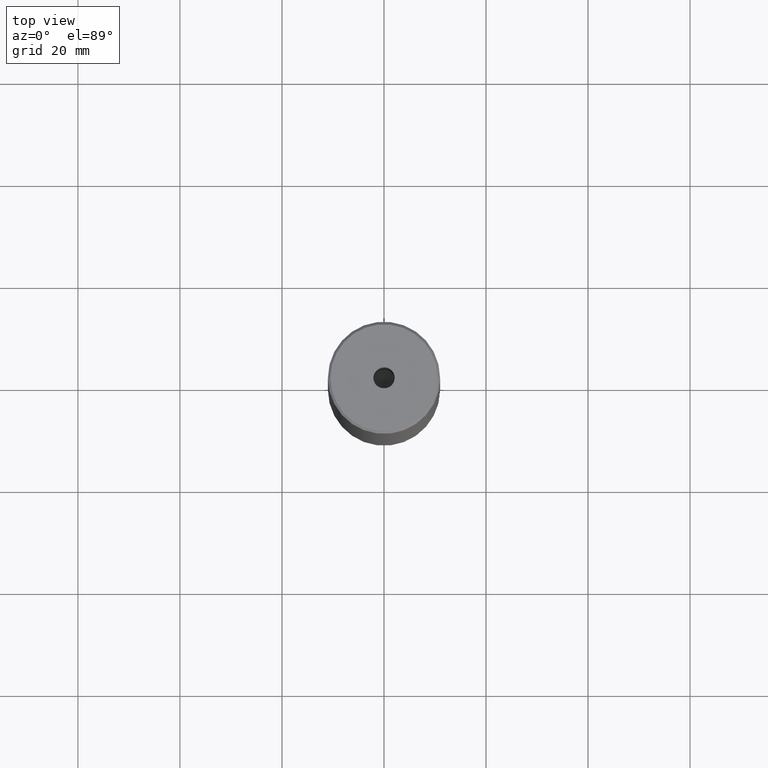
[diagram: clean part render]
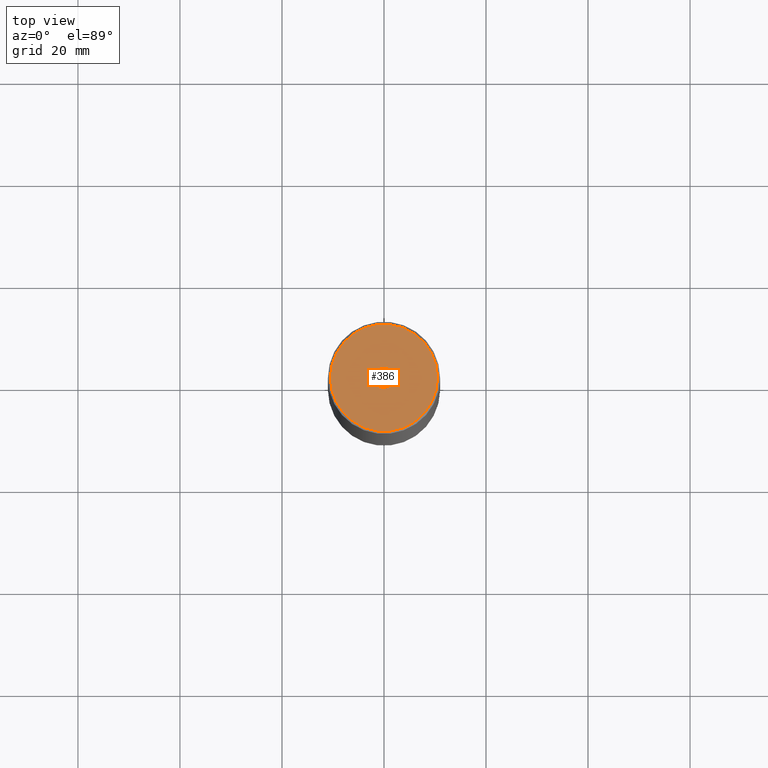
[diagram: same view with one face highlighted and labeled with its STEP entity id]
A machine part, top view. The second image highlights one B-rep face of the part: STEP entity #386.
In plain terms, the highlighted planar face has unit normal (0, -0, 1).
Its self-contained STEP definition (entity closure, byte-faithful):
#16 = DIRECTION ( 'NONE',  ( 1.000000000000000000, 0.000000000000000000, 0.000000000000000000 ) ) ;
#18 = DIRECTION ( 'NONE',  ( 1.000000000000000000, 0.000000000000000000, 0.000000000000000000 ) ) ;
#20 = CIRCLE ( 'NONE', #469, 2.099999999999998757 ) ;
#28 = DIRECTION ( 'NONE',  ( 0.000000000000000000, -0.000000000000000000, 1.000000000000000000 ) ) ;
#61 = CIRCLE ( 'NONE', #422, 10.49999999999999467 ) ;
#70 = DIRECTION ( 'NONE',  ( -0.000000000000000000, -0.000000000000000000, 1.000000000000000000 ) ) ;
#81 = CARTESIAN_POINT ( 'NONE',  ( -10.49999999999999467, 0.000000000000000000, 0.000000000000000000 ) ) ;
#134 = EDGE_CURVE ( 'NONE', #365, #452, #61, .T. ) ;
#149 = ORIENTED_EDGE ( 'NONE', *, *, #197, .F. ) ;
#156 = DIRECTION ( 'NONE',  ( -0.000000000000000000, -0.000000000000000000, 1.000000000000000000 ) ) ;
#157 = CARTESIAN_POINT ( 'NONE',  ( 0.000000000000000000, 0.000000000000000000, 0.000000000000000000 ) ) ;
#176 = ORIENTED_EDGE ( 'NONE', *, *, #134, .T. ) ;
#181 = CARTESIAN_POINT ( 'NONE',  ( 2.099999999999998757, 0.000000000000000000, -1.990051048614449116E-16 ) ) ;
#197 = EDGE_CURVE ( 'NONE', #404, #462, #20, .T. ) ;
#199 = CARTESIAN_POINT ( 'NONE',  ( -2.099999999999998757, 2.571758278209440478E-16, -1.990051048614449116E-16 ) ) ;
#202 = CARTESIAN_POINT ( 'NONE',  ( 0.000000000000000000, 0.000000000000000000, -1.990051048614449116E-16 ) ) ;
#222 = EDGE_CURVE ( 'NONE', #462, #404, #363, .T. ) ;
#244 = EDGE_LOOP ( 'NONE', ( #350, #176 ) ) ;
#245 = EDGE_CURVE ( 'NONE', #452, #365, #326, .T. ) ;
#278 = DIRECTION ( 'NONE',  ( -0.000000000000000000, -0.000000000000000000, 1.000000000000000000 ) ) ;
#285 = PLANE ( 'NONE',  #297 ) ;
#290 = CARTESIAN_POINT ( 'NONE',  ( 0.000000000000000000, 0.000000000000000000, -1.990051048614449116E-16 ) ) ;
#297 = AXIS2_PLACEMENT_3D ( 'NONE', #157, #28, #487 ) ;
#326 = CIRCLE ( 'NONE', #545, 10.49999999999999467 ) ;
#350 = ORIENTED_EDGE ( 'NONE', *, *, #245, .T. ) ;
#363 = CIRCLE ( 'NONE', #442, 2.099999999999998757 ) ;
#365 = VERTEX_POINT ( 'NONE', #583 ) ;
#386 = ADVANCED_FACE ( 'NONE', ( #556, #529 ), #285, .T. ) ;
#396 = DIRECTION ( 'NONE',  ( 1.000000000000000000, 0.000000000000000000, 0.000000000000000000 ) ) ;
#404 = VERTEX_POINT ( 'NONE', #199 ) ;
#409 = EDGE_LOOP ( 'NONE', ( #465, #149 ) ) ;
#422 = AXIS2_PLACEMENT_3D ( 'NONE', #543, #156, #396 ) ;
#430 = CARTESIAN_POINT ( 'NONE',  ( 0.000000000000000000, 0.000000000000000000, 0.000000000000000000 ) ) ;
#442 = AXIS2_PLACEMENT_3D ( 'NONE', #202, #278, #474 ) ;
#452 = VERTEX_POINT ( 'NONE', #81 ) ;
#462 = VERTEX_POINT ( 'NONE', #181 ) ;
#465 = ORIENTED_EDGE ( 'NONE', *, *, #222, .F. ) ;
#469 = AXIS2_PLACEMENT_3D ( 'NONE', #290, #70, #16 ) ;
#474 = DIRECTION ( 'NONE',  ( 1.000000000000000000, 0.000000000000000000, 0.000000000000000000 ) ) ;
#487 = DIRECTION ( 'NONE',  ( 1.000000000000000000, 0.000000000000000000, 0.000000000000000000 ) ) ;
#529 = FACE_OUTER_BOUND ( 'NONE', #244, .T. ) ;
#543 = CARTESIAN_POINT ( 'NONE',  ( 0.000000000000000000, 0.000000000000000000, 0.000000000000000000 ) ) ;
#545 = AXIS2_PLACEMENT_3D ( 'NONE', #430, #558, #18 ) ;
#556 = FACE_BOUND ( 'NONE', #409, .T. ) ;
#558 = DIRECTION ( 'NONE',  ( -0.000000000000000000, -0.000000000000000000, 1.000000000000000000 ) ) ;
#583 = CARTESIAN_POINT ( 'NONE',  ( 10.49999999999999467, 1.316495309083404420E-15, 0.000000000000000000 ) ) ;